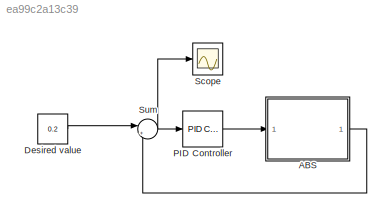
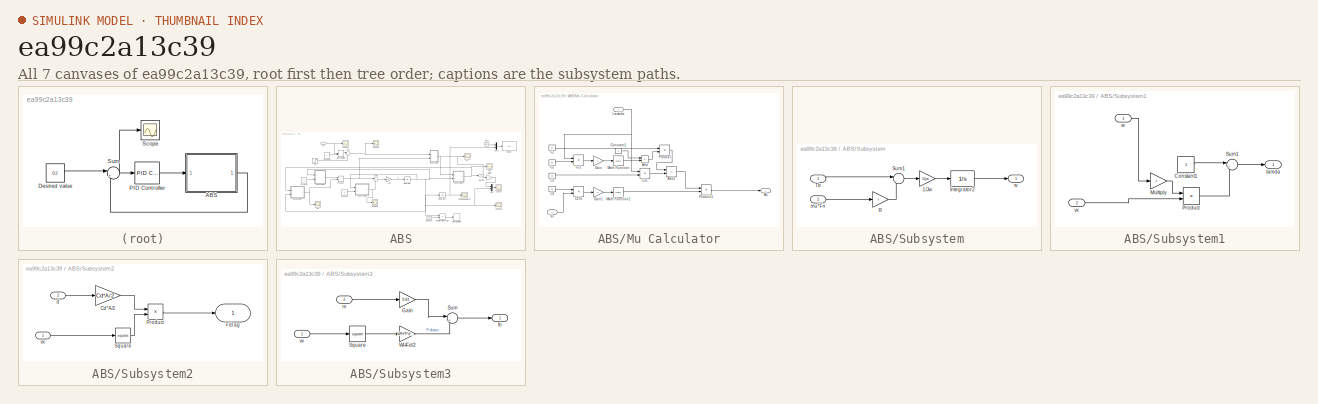
[diagram: thumbnail index - all 7 canvases of the model, root first then tree order]
MODEL slx_ea99c2a13c39
KIND model
CONFIG AbsTol = auto
CONFIG EnableMultiTasking = off
CONFIG FixedStep = auto
CONFIG MaxStep = auto
CONFIG MinStep = auto
CONFIG RelTol = 1e-3
CONFIG SampleTimeConstraint = Unconstrained
CONFIG SolverName = VariableStepAuto
CONFIG StartTime = 0.0
CONFIG StopTime = 100
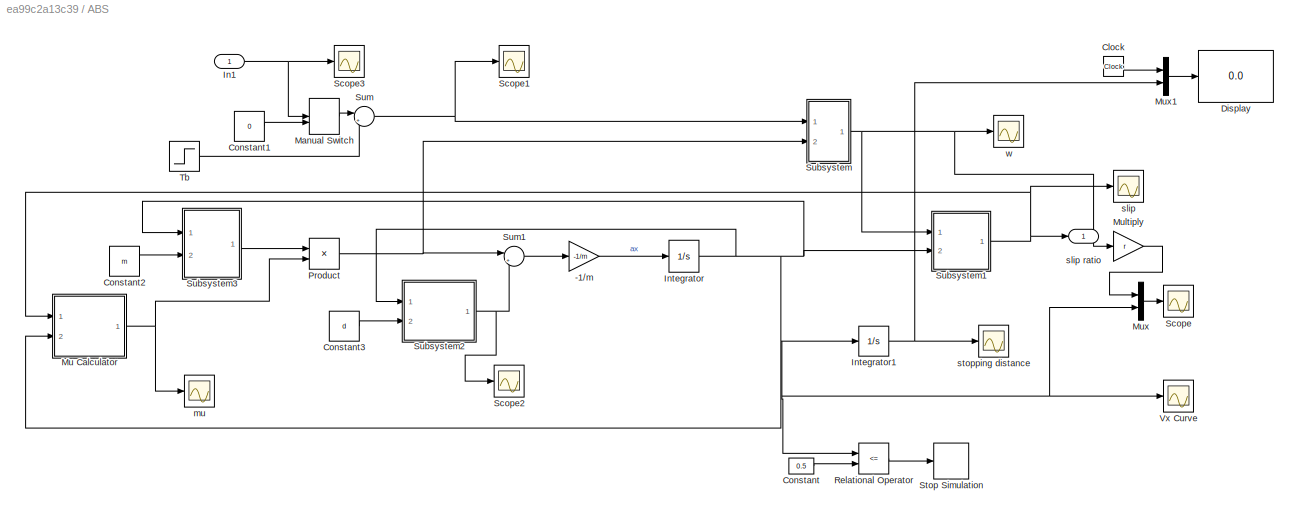
BLOCK [SubSystem] ABS
  Ports = [1, 1]
  RequestExecContextInheritance = off
BLOCK [Gain] ABS/-1//m
  Gain = -1/m
BLOCK [Clock] ABS/Clock
BLOCK [Constant] ABS/Constant
  Value = 0.5
BLOCK [Constant] ABS/Constant1
  Value = 0
BLOCK [Constant] ABS/Constant2
  Value = m
BLOCK [Constant] ABS/Constant3
  Value = d
BLOCK [Display] ABS/Display
  Decimation = 1
  Ports = [1]
BLOCK [Inport] ABS/In1
BLOCK [Integrator] ABS/Integrator
  InitialCondition = 27.78
  LimitOutput = on
  LowerSaturationLimit = 0
  Ports = [1, 1]
BLOCK [Integrator] ABS/Integrator1
  Ports = [1, 1]
BLOCK [ManualSwitch] ABS/Manual Switch
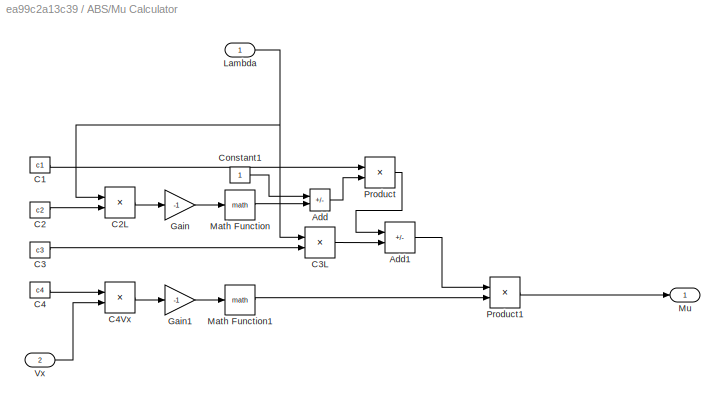
BLOCK [SubSystem] ABS/Mu Calculator
  Ports = [2, 1]
  RequestExecContextInheritance = off
BLOCK [Sum] ABS/Mu Calculator/Add
  IconShape = rectangular
  Inputs = +-
  Ports = [2, 1]
BLOCK [Sum] ABS/Mu Calculator/Add1
  IconShape = rectangular
  Inputs = +-
  Ports = [2, 1]
BLOCK [Constant] ABS/Mu Calculator/C1
  Value = c1
BLOCK [Constant] ABS/Mu Calculator/C2
  Value = c2
BLOCK [Product] ABS/Mu Calculator/C2L
  Ports = [2, 1]
BLOCK [Constant] ABS/Mu Calculator/C3
  Value = c3
BLOCK [Product] ABS/Mu Calculator/C3L
  Ports = [2, 1]
BLOCK [Constant] ABS/Mu Calculator/C4
  Value = c4
BLOCK [Product] ABS/Mu Calculator/C4Vx
  Ports = [2, 1]
BLOCK [Constant] ABS/Mu Calculator/Constant1
BLOCK [Gain] ABS/Mu Calculator/Gain
  Gain = -1
BLOCK [Gain] ABS/Mu Calculator/Gain1
  Gain = -1
BLOCK [Inport] ABS/Mu Calculator/Lambda
BLOCK [Math] ABS/Mu Calculator/Math Function
  Ports = [1, 1]
BLOCK [Math] ABS/Mu Calculator/Math Function1
  Ports = [1, 1]
BLOCK [Outport] ABS/Mu Calculator/Mu
BLOCK [Product] ABS/Mu Calculator/Product
  Ports = [2, 1]
BLOCK [Product] ABS/Mu Calculator/Product1
  Ports = [2, 1]
BLOCK [Inport] ABS/Mu Calculator/Vx
  Port = 2
BLOCK [Gain] ABS/Multiply
  Gain = r
BLOCK [Mux] ABS/Mux
  DisplayOption = bar
  Inputs = 2
  Ports = [2, 1]
BLOCK [Mux] ABS/Mux1
  DisplayOption = bar
  Inputs = 2
  Ports = [2, 1]
BLOCK [Product] ABS/Product
  Ports = [2, 1]
BLOCK [RelationalOperator] ABS/Relational Operator
  InputSameDT = off
  Operator = <=
  OutDataTypeStr = boolean
  Ports = [2, 1]
  RndMeth = Simplest
BLOCK [Scope] ABS/Scope
  Floating = off
  NumInputPorts = 1
  Ports = [1]
  ScopeSpecificationString = Simulink.scopes.TimeScopeBlockCfg('CurrentConfiguration', extmgr.ConfigurationSet(extmgr.Configuration('Core','General UI',true),extmgr.Configuration('Core','Source UI',true),extmgr.Configuration('Sources','WiredSimulink',true,'DataLoggingVariableName','ScopeData1'),extmgr.Configuration('Visuals','Time Domain',true,'SerializedDisplays',{struct('MinYLimReal','-3.4725','MaxYLimReal','31.2525','YLabe...<+1457ch>
BLOCK [Scope] ABS/Scope1
  Floating = off
  NumInputPorts = 1
  Ports = [1]
  ScopeSpecificationString = Simulink.scopes.TimeScopeBlockCfg('CurrentConfiguration', extmgr.ConfigurationSet(extmgr.Configuration('Core','General UI',true),extmgr.Configuration('Core','Source UI',true),extmgr.Configuration('Sources','WiredSimulink',true,'DataLoggingVariableName','ScopeData1'),extmgr.Configuration('Visuals','Time Domain',true,'SerializedDisplays',{struct('MinYLimReal','731.14555','MaxYLimReal','1442.76965','...<+1514ch>
BLOCK [Scope] ABS/Scope2
  Floating = off
  NumInputPorts = 1
  Ports = [1]
  ScopeSpecificationString = Simulink.scopes.TimeScopeBlockCfg('CurrentConfiguration', extmgr.ConfigurationSet(extmgr.Configuration('Core','General UI',true),extmgr.Configuration('Core','Source UI',true),extmgr.Configuration('Sources','WiredSimulink',true,'DataLoggingVariableName','ScopeData1'),extmgr.Configuration('Visuals','Time Domain',true,'SerializedDisplays',{struct('MinYLimReal','-76.11257','MaxYLimReal','686.99143','Y...<+1408ch>
BLOCK [Scope] ABS/Scope3
  Floating = off
  NumInputPorts = 1
  Ports = [1]
  ScopeSpecificationString = Simulink.scopes.TimeScopeBlockCfg('CurrentConfiguration', extmgr.ConfigurationSet(extmgr.Configuration('Core','General UI',true),extmgr.Configuration('Core','Source UI',true),extmgr.Configuration('Sources','WiredSimulink',true,'DataLoggingVariableName','ScopeData2'),extmgr.Configuration('Visuals','Time Domain',true,'SerializedDisplays',{struct('MinYLimReal','-2065.5709','MaxYLimReal','6006.66171',...<+1505ch>
BLOCK [Stop] ABS/Stop Simulation
BLOCK [SubSystem] ABS/Subsystem
  Ports = [2, 1]
  RequestExecContextInheritance = off
BLOCK [Gain] ABS/Subsystem/1//Jw
  Gain = 1/jw
BLOCK [Integrator] ABS/Subsystem/Integrator2
  InitialCondition = 84.18
  LimitOutput = on
  LowerSaturationLimit = 0
  Ports = [1, 1]
BLOCK [Gain] ABS/Subsystem/R
  Gain = r
BLOCK [Sum] ABS/Subsystem/Sum1
  Inputs = |-+
  Ports = [2, 1]
BLOCK [Inport] ABS/Subsystem/Tb
BLOCK [Inport] ABS/Subsystem/mu*Fn
  Port = 2
BLOCK [Outport] ABS/Subsystem/w
BLOCK [SubSystem] ABS/Subsystem1
  Ports = [2, 1]
  RequestExecContextInheritance = off
BLOCK [Constant] ABS/Subsystem1/Constant1
BLOCK [Gain] ABS/Subsystem1/Multiply
  Gain = r
BLOCK [Product] ABS/Subsystem1/Product
  Inputs = */
  Ports = [2, 1]
BLOCK [Sum] ABS/Subsystem1/Sum1
  Inputs = |+-
  Ports = [2, 1]
BLOCK [Outport] ABS/Subsystem1/lamda
BLOCK [Inport] ABS/Subsystem1/vx
  Port = 2
BLOCK [Inport] ABS/Subsystem1/w
BLOCK [SubSystem] ABS/Subsystem2
  Ports = [2, 1]
  RequestExecContextInheritance = off
BLOCK [Gain] ABS/Subsystem2/Cd*A//2
  Gain = Cd*A/2
BLOCK [Outport] ABS/Subsystem2/Fdrag
BLOCK [Product] ABS/Subsystem2/Product
  Ports = [2, 1]
BLOCK [Math] ABS/Subsystem2/Square
  Operator = square
  Ports = [1, 1]
BLOCK [Inport] ABS/Subsystem2/d
  Port = 2
BLOCK [Inport] ABS/Subsystem2/vx
BLOCK [SubSystem] ABS/Subsystem3
  Ports = [2, 1]
  RequestExecContextInheritance = off
BLOCK [Gain] ABS/Subsystem3/Gain
  Gain = 9.81
BLOCK [Math] ABS/Subsystem3/Square
  Operator = square
  Ports = [1, 1]
BLOCK [Sum] ABS/Subsystem3/Sum
  Inputs = |++
  Ports = [2, 1]
BLOCK [Gain] ABS/Subsystem3/WHFd//2
  Gain = W*H*F*d/2
BLOCK [Outport] ABS/Subsystem3/fn
BLOCK [Inport] ABS/Subsystem3/m
  Port = 2
BLOCK [Inport] ABS/Subsystem3/vx
BLOCK [Sum] ABS/Sum
  Inputs = |++
  Ports = [2, 1]
BLOCK [Sum] ABS/Sum1
  Inputs = |++
  Ports = [2, 1]
BLOCK [Step] ABS/Tb
  After = 1200
  SampleTime = 0
  Time = 0
BLOCK [Scope] ABS/Vx Curve
  Floating = off
  NumInputPorts = 1
  Ports = [1]
  ScopeSpecificationString = Simulink.scopes.TimeScopeBlockCfg('CurrentConfiguration', extmgr.ConfigurationSet(extmgr.Configuration('Core','General UI',true),extmgr.Configuration('Core','Source UI',true),extmgr.Configuration('Sources','WiredSimulink',true,'DataLoggingVariableName','ScopeData1'),extmgr.Configuration('Visuals','Time Domain',true,'SerializedDisplays',{struct('MinYLimReal','20.2055','MaxYLimReal','28.62161','YLab...<+1494ch>
BLOCK [Scope] ABS/mu
  Floating = off
  NumInputPorts = 1
  Ports = [1]
  ScopeSpecificationString = Simulink.scopes.TimeScopeBlockCfg('CurrentConfiguration', extmgr.ConfigurationSet(extmgr.Configuration('Core','General UI',true),extmgr.Configuration('Core','Source UI',true),extmgr.Configuration('Sources','WiredSimulink',true,'DataLoggingVariableName','ScopeData1'),extmgr.Configuration('Visuals','Time Domain',true,'SerializedDisplays',{struct('MinYLimReal','-0.14321','MaxYLimReal','1.29174','YLab...<+1470ch>
BLOCK [Scope] ABS/slip
  Floating = off
  NumInputPorts = 1
  Ports = [1]
  ScopeSpecificationString = Simulink.scopes.TimeScopeBlockCfg('CurrentConfiguration', extmgr.ConfigurationSet(extmgr.Configuration('Core','General UI',true),extmgr.Configuration('Core','Source UI',true),extmgr.Configuration('Sources','WiredSimulink',true,'DataLoggingVariableName','ScopeData3'),extmgr.Configuration('Visuals','Time Domain',true,'SerializedDisplays',{struct('MinYLimReal','-0.12498','MaxYLimReal','1.125','YLabel...<+1466ch>
BLOCK [Outport] ABS/slip ratio
BLOCK [Scope] ABS/stopping distance
  Floating = off
  NumInputPorts = 1
  Ports = [1]
  ScopeSpecificationString = Simulink.scopes.TimeScopeBlockCfg('CurrentConfiguration', extmgr.ConfigurationSet(extmgr.Configuration('Core','General UI',true),extmgr.Configuration('Core','Source UI',true),extmgr.Configuration('Sources','WiredSimulink',true),extmgr.Configuration('Visuals','Time Domain',true,'SerializedDisplays',{struct('MinYLimReal','-7.4918','MaxYLimReal','67.42624','YLabelReal','','MinYLimMag','0.00000','MaxY...<+1482ch>
BLOCK [Scope] ABS/w
  Floating = off
  NumInputPorts = 1
  Ports = [1]
  ScopeSpecificationString = Simulink.scopes.TimeScopeBlockCfg('CurrentConfiguration', extmgr.ConfigurationSet(extmgr.Configuration('Core','General UI',true),extmgr.Configuration('Core','Source UI',true),extmgr.Configuration('Sources','WiredSimulink',true,'DataLoggingVariableName','ScopeData2'),extmgr.Configuration('Visuals','Time Domain',true,'SerializedDisplays',{struct('MinYLimReal','-10.5225','MaxYLimReal','94.7025','YLab...<+1473ch>
BLOCK [Constant] Desired value
  Value = 0.2
BLOCK [Reference] PID Controller  REF=pid_lib/PID Controller
  Ports = [1, 1]
  SourceBlock = pid_lib/PID Controller
  SourceProductBaseCode = SL
  SourceType = PID 1dof
BLOCK [Scope] Scope
  Floating = off
  NumInputPorts = 1
  Ports = [1]
  ScopeSpecificationString = Simulink.scopes.TimeScopeBlockCfg('CurrentConfiguration', extmgr.ConfigurationSet(extmgr.Configuration('Core','General UI',true),extmgr.Configuration('Core','Source UI',true),extmgr.Configuration('Sources','WiredSimulink',true,'DataLoggingVariableName','ScopeData1'),extmgr.Configuration('Visuals','Time Domain',true,'SerializedDisplays',{struct('MinYLimReal','-0.08056','MaxYLimReal','0.23115','YLab...<+1435ch>
BLOCK [Sum] Sum
  Inputs = |+-
  Ports = [2, 1]
LINE ABS/-1//m:1 -> ABS/Integrator:1
LINE ABS/Clock:1 -> ABS/Mux1:1
LINE ABS/Constant1:1 -> ABS/Manual Switch:2
LINE ABS/Constant2:1 -> ABS/Subsystem3:2
LINE ABS/Constant3:1 -> ABS/Subsystem2:2
LINE ABS/Constant:1 -> ABS/Relational Operator:2
NET ABS/In1:1 -> ABS/Manual Switch:1, ABS/Scope3:1
NET ABS/Integrator1:1 -> ABS/Mux1:2, ABS/stopping distance:1
NET ABS/Integrator:1 -> ABS/Integrator1:1, ABS/Mu Calculator:2, ABS/Mux:2, ABS/Relational Operator:1, ABS/Subsystem1:2, ABS/Subsystem2:1, ABS/Subsystem3:1, ABS/Vx Curve:1
LINE ABS/Manual Switch:1 -> ABS/Sum:1
LINE ABS/Mu Calculator/Add1:1 -> ABS/Mu Calculator/Product1:1
LINE ABS/Mu Calculator/Add:1 -> ABS/Mu Calculator/Product:2
LINE ABS/Mu Calculator/C1:1 -> ABS/Mu Calculator/Product:1
LINE ABS/Mu Calculator/C2:1 -> ABS/Mu Calculator/C2L:2
LINE ABS/Mu Calculator/C2L:1 -> ABS/Mu Calculator/Gain:1
LINE ABS/Mu Calculator/C3:1 -> ABS/Mu Calculator/C3L:2
LINE ABS/Mu Calculator/C3L:1 -> ABS/Mu Calculator/Add1:2
LINE ABS/Mu Calculator/C4:1 -> ABS/Mu Calculator/C4Vx:1
LINE ABS/Mu Calculator/C4Vx:1 -> ABS/Mu Calculator/Gain1:1
LINE ABS/Mu Calculator/Constant1:1 -> ABS/Mu Calculator/Add:1
LINE ABS/Mu Calculator/Gain1:1 -> ABS/Mu Calculator/Math Function1:1
LINE ABS/Mu Calculator/Gain:1 -> ABS/Mu Calculator/Math Function:1
NET ABS/Mu Calculator/Lambda:1 -> ABS/Mu Calculator/C2L:1, ABS/Mu Calculator/C3L:1
LINE ABS/Mu Calculator/Math Function1:1 -> ABS/Mu Calculator/Product1:2
LINE ABS/Mu Calculator/Math Function:1 -> ABS/Mu Calculator/Add:2
LINE ABS/Mu Calculator/Product1:1 -> ABS/Mu Calculator/Mu:1
LINE ABS/Mu Calculator/Product:1 -> ABS/Mu Calculator/Add1:1
LINE ABS/Mu Calculator/Vx:1 -> ABS/Mu Calculator/C4Vx:2
NET ABS/Mu Calculator:1 -> ABS/Product:2, ABS/mu:1
LINE ABS/Multiply:1 -> ABS/Mux:1
LINE ABS/Mux1:1 -> ABS/Display:1
LINE ABS/Mux:1 -> ABS/Scope:1
NET ABS/Product:1 -> ABS/Subsystem:2, ABS/Sum1:1
LINE ABS/Relational Operator:1 -> ABS/Stop Simulation:1
LINE ABS/Subsystem/1//Jw:1 -> ABS/Subsystem/Integrator2:1
LINE ABS/Subsystem/Integrator2:1 -> ABS/Subsystem/w:1
LINE ABS/Subsystem/R:1 -> ABS/Subsystem/Sum1:2
LINE ABS/Subsystem/Sum1:1 -> ABS/Subsystem/1//Jw:1
LINE ABS/Subsystem/Tb:1 -> ABS/Subsystem/Sum1:1
LINE ABS/Subsystem/mu*Fn:1 -> ABS/Subsystem/R:1
LINE ABS/Subsystem1/Constant1:1 -> ABS/Subsystem1/Sum1:1
LINE ABS/Subsystem1/Multiply:1 -> ABS/Subsystem1/Product:1
LINE ABS/Subsystem1/Product:1 -> ABS/Subsystem1/Sum1:2
LINE ABS/Subsystem1/Sum1:1 -> ABS/Subsystem1/lamda:1
LINE ABS/Subsystem1/vx:1 -> ABS/Subsystem1/Product:2
LINE ABS/Subsystem1/w:1 -> ABS/Subsystem1/Multiply:1
NET ABS/Subsystem1:1 -> ABS/Mu Calculator:1, ABS/slip ratio:1, ABS/slip:1
LINE ABS/Subsystem2/Cd*A//2:1 -> ABS/Subsystem2/Product:1
LINE ABS/Subsystem2/Product:1 -> ABS/Subsystem2/Fdrag:1
LINE ABS/Subsystem2/Square:1 -> ABS/Subsystem2/Product:2
LINE ABS/Subsystem2/d:1 -> ABS/Subsystem2/Cd*A//2:1
LINE ABS/Subsystem2/vx:1 -> ABS/Subsystem2/Square:1
NET ABS/Subsystem2:1 -> ABS/Scope2:1, ABS/Sum1:2
LINE ABS/Subsystem3/Gain:1 -> ABS/Subsystem3/Sum:1
LINE ABS/Subsystem3/Square:1 -> ABS/Subsystem3/WHFd//2:1
LINE ABS/Subsystem3/Sum:1 -> ABS/Subsystem3/fn:1
LINE ABS/Subsystem3/WHFd//2:1 -> ABS/Subsystem3/Sum:2
LINE ABS/Subsystem3/m:1 -> ABS/Subsystem3/Gain:1
LINE ABS/Subsystem3/vx:1 -> ABS/Subsystem3/Square:1
LINE ABS/Subsystem3:1 -> ABS/Product:1
NET ABS/Subsystem:1 -> ABS/Multiply:1, ABS/Subsystem1:1, ABS/w:1
LINE ABS/Sum1:1 -> ABS/-1//m:1
NET ABS/Sum:1 -> ABS/Scope1:1, ABS/Subsystem:1
LINE ABS/Tb:1 -> ABS/Sum:2
LINE ABS:1 -> Sum:2
LINE Desired value:1 -> Sum:1
LINE PID Controller:1 -> ABS:1
NET Sum:1 -> PID Controller:1, Scope:1
note: NET lines group one-source signal fan-out (src -> all destinations, sorted); 1:1 wires keep LINE
